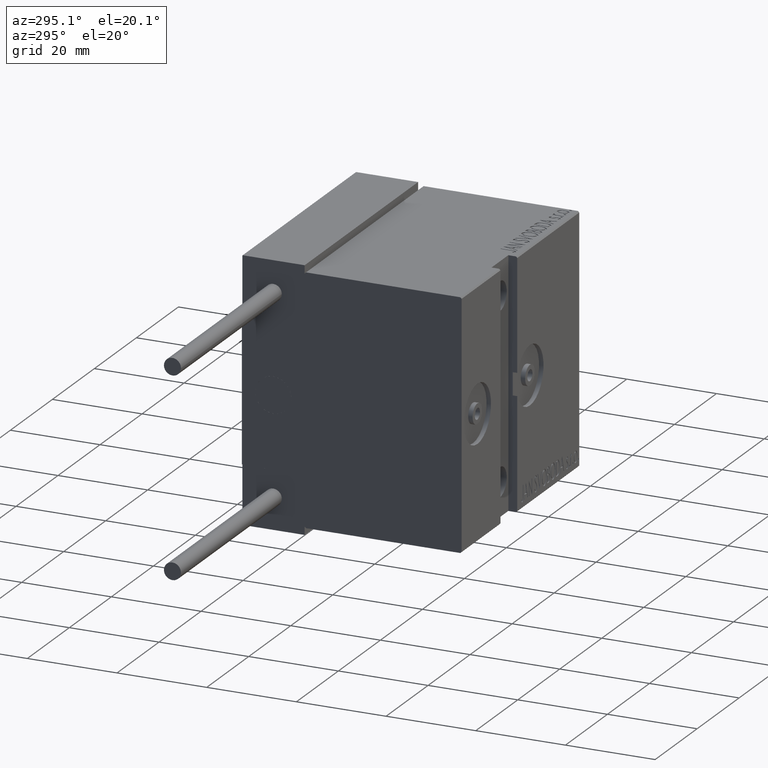
[diagram: clean part render]
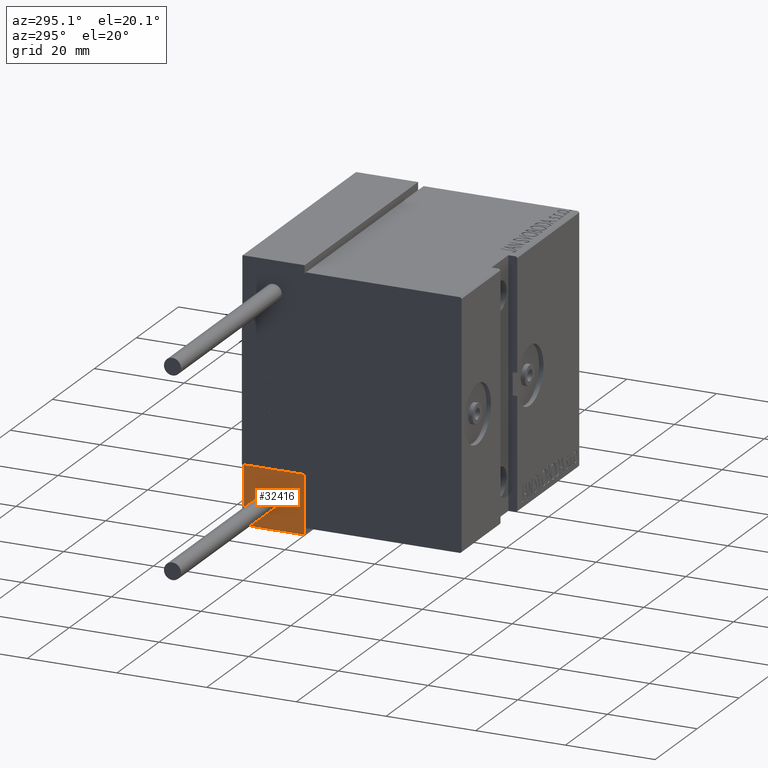
[diagram: same view with one face highlighted and labeled with its STEP entity id]
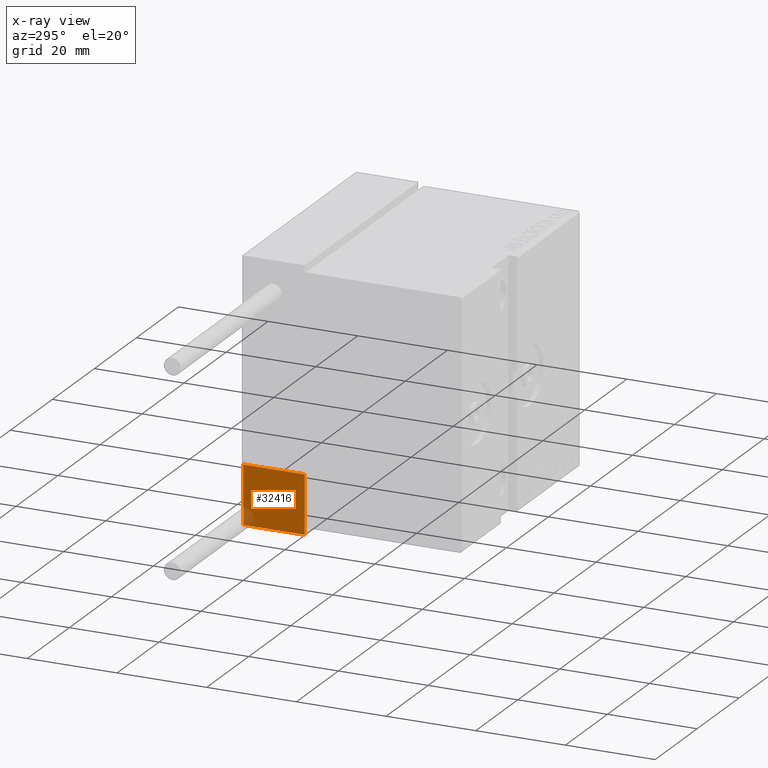
[diagram: x-ray of the same camera — body ghosted, the highlighted face saturated]
A machine part, auxiliary view. The second image highlights one B-rep face of the part: STEP entity #32416.
The next image is the same camera in x-ray: the body ghosted, the highlighted face saturated — about 4% of this face is hidden behind the body in this view.
In plain terms, the highlighted planar face has unit normal (1, 0, 0).
Its self-contained STEP definition (entity closure, byte-faithful):
#1152 = CARTESIAN_POINT ( 'NONE',  ( -26.99999999999993605, 20.00000000000002132, 13.70000000000000107 ) ) ;
#1428 = DIRECTION ( 'NONE',  ( -0.000000000000000000, -0.000000000000000000, -1.000000000000000000 ) ) ;
#2165 = LINE ( 'NONE', #17700, #25789 ) ;
#2620 = ORIENTED_EDGE ( 'NONE', *, *, #38671, .T. ) ;
#3522 = DIRECTION ( 'NONE',  ( 8.006416042969869188E-16, 1.000000000000000000, 0.000000000000000000 ) ) ;
#3775 = CARTESIAN_POINT ( 'NONE',  ( -26.99999999999993605, 20.00000000000002132, 14.00000000000000000 ) ) ;
#3803 = VECTOR ( 'NONE', #41473, 1000.000000000000000 ) ;
#4412 = DIRECTION ( 'NONE',  ( -8.006416042969869188E-16, -1.000000000000000000, 0.000000000000000000 ) ) ;
#5152 = EDGE_CURVE ( 'NONE', #32913, #17855, #48633, .T. ) ;
#5547 = VERTEX_POINT ( 'NONE', #36169 ) ;
#6037 = CARTESIAN_POINT ( 'NONE',  ( -26.99999999999993605, 20.00000000000002132, 14.00000000000000000 ) ) ;
#7772 = CARTESIAN_POINT ( 'NONE',  ( -26.99999999999993605, 20.00000000000002132, 0.000000000000000000 ) ) ;
#9534 = EDGE_LOOP ( 'NONE', ( #34392, #22992, #32333, #2620 ) ) ;
#11075 = CARTESIAN_POINT ( 'NONE',  ( -26.99999999999994671, 7.000000000000005329, 0.000000000000000000 ) ) ;
#12308 = AXIS2_PLACEMENT_3D ( 'NONE', #3775, #22875, #3522 ) ;
#12899 = VECTOR ( 'NONE', #13096, 1000.000000000000000 ) ;
#13096 = DIRECTION ( 'NONE',  ( 8.006416042969869188E-16, 1.000000000000000000, -0.000000000000000000 ) ) ;
#17700 = CARTESIAN_POINT ( 'NONE',  ( -26.99999999999994671, 7.000000000000005329, 14.00000000000000000 ) ) ;
#17855 = VERTEX_POINT ( 'NONE', #7772 ) ;
#19941 = CARTESIAN_POINT ( 'NONE',  ( -26.99999999999993605, 20.00000000000002132, 0.000000000000000000 ) ) ;
#21748 = VECTOR ( 'NONE', #4412, 1000.000000000000000 ) ;
#22342 = EDGE_CURVE ( 'NONE', #5547, #32913, #32196, .T. ) ;
#22875 = DIRECTION ( 'NONE',  ( 1.000000000000000000, -8.006416042969869188E-16, 0.000000000000000000 ) ) ;
#22992 = ORIENTED_EDGE ( 'NONE', *, *, #22342, .T. ) ;
#25789 = VECTOR ( 'NONE', #1428, 1000.000000000000000 ) ;
#30275 = FACE_OUTER_BOUND ( 'NONE', #9534, .T. ) ;
#32196 = LINE ( 'NONE', #43951, #12899 ) ;
#32333 = ORIENTED_EDGE ( 'NONE', *, *, #5152, .T. ) ;
#32416 = ADVANCED_FACE ( 'NONE', ( #30275 ), #43030, .F. ) ;
#32913 = VERTEX_POINT ( 'NONE', #1152 ) ;
#34392 = ORIENTED_EDGE ( 'NONE', *, *, #40980, .F. ) ;
#35494 = LINE ( 'NONE', #19941, #21748 ) ;
#36169 = CARTESIAN_POINT ( 'NONE',  ( -26.99999999999994671, 7.000000000000005329, 13.70000000000000107 ) ) ;
#38204 = VERTEX_POINT ( 'NONE', #11075 ) ;
#38671 = EDGE_CURVE ( 'NONE', #17855, #38204, #35494, .T. ) ;
#40980 = EDGE_CURVE ( 'NONE', #5547, #38204, #2165, .T. ) ;
#41473 = DIRECTION ( 'NONE',  ( -0.000000000000000000, -0.000000000000000000, -1.000000000000000000 ) ) ;
#43030 = PLANE ( 'NONE',  #12308 ) ;
#43951 = CARTESIAN_POINT ( 'NONE',  ( -26.99999999999993605, 20.00000000000002132, 13.70000000000000107 ) ) ;
#48633 = LINE ( 'NONE', #6037, #3803 ) ;